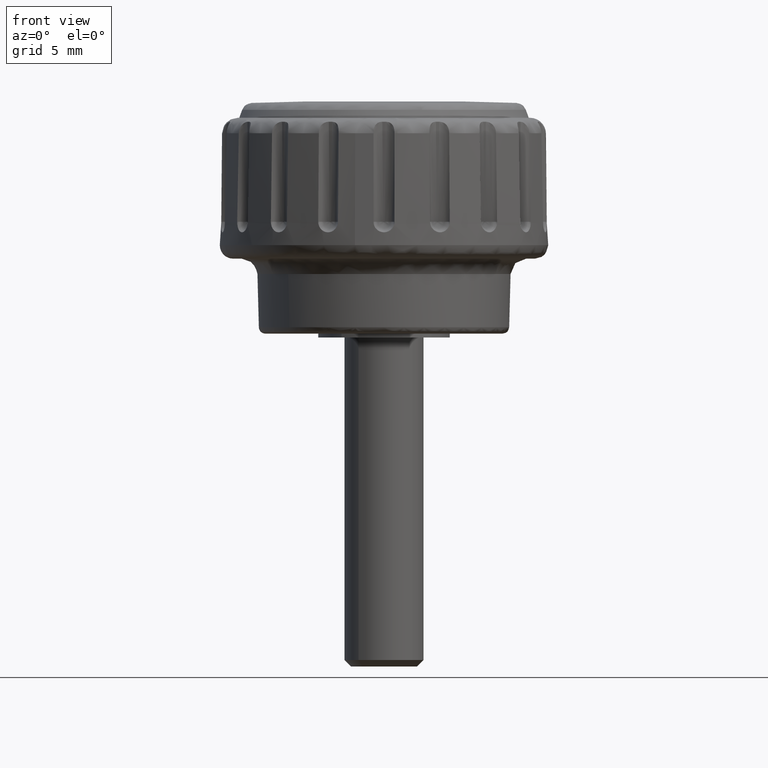
[diagram: clean part render]
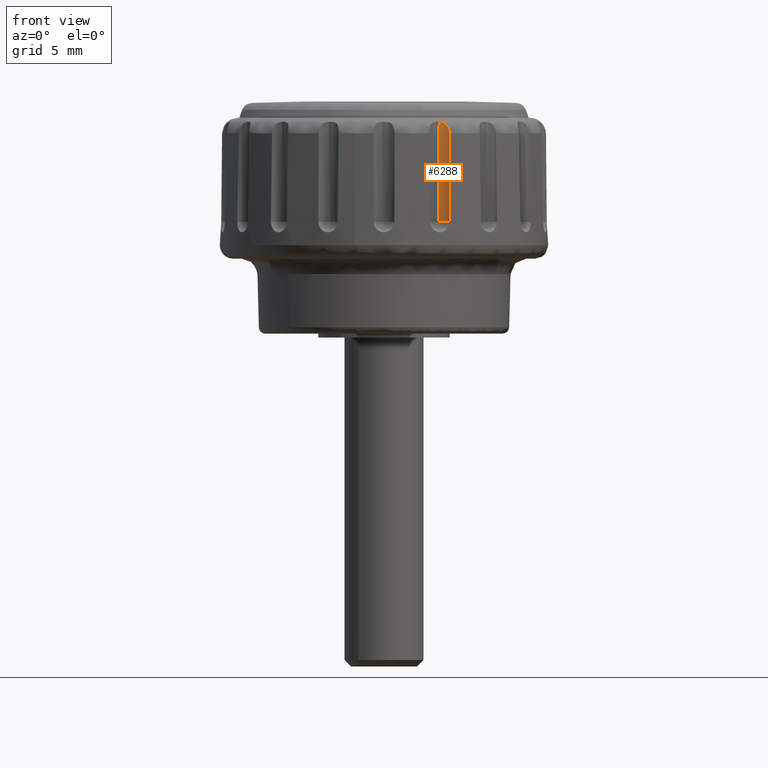
[diagram: same view with one face highlighted and labeled with its STEP entity id]
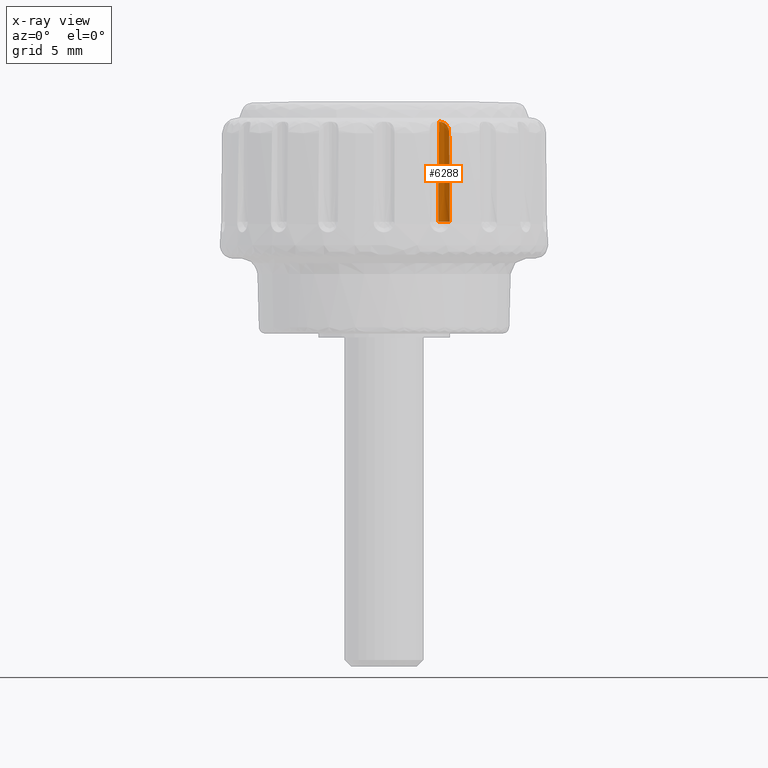
[diagram: x-ray of the same camera — body ghosted, the highlighted face saturated]
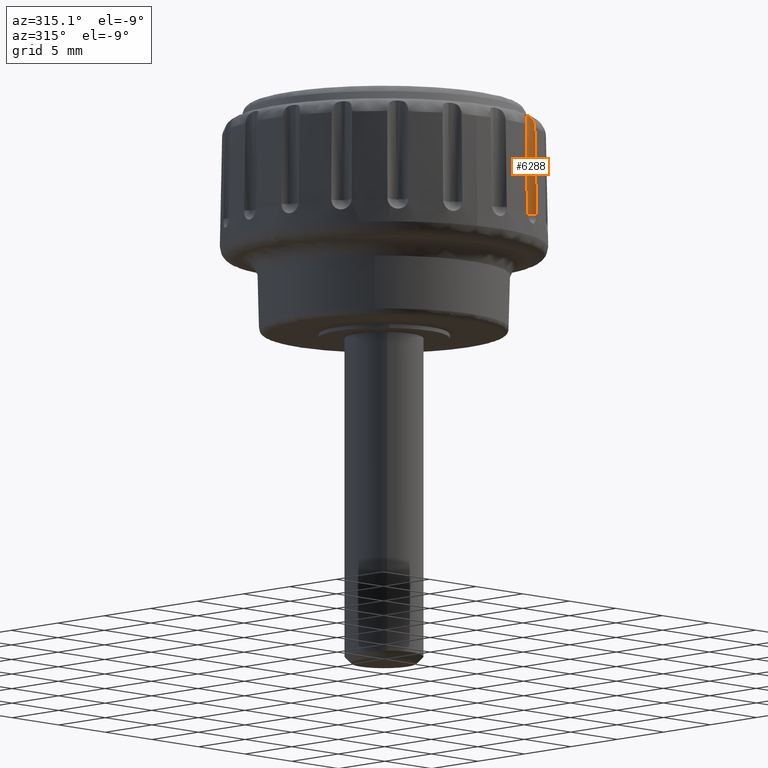
[diagram: same view with one face highlighted and labeled with its STEP entity id]
A machine part, front view. The second image highlights one B-rep face of the part: STEP entity #6288.
The next image is the same camera in x-ray: the body ghosted, the highlighted face saturated — about 0% of this face is hidden behind the body in this view.
A second angle (auxiliary view) of the same face is appended — the face is thin or edge-on in the first view.
In plain terms, the highlighted face is a freeform B-spline surface patch.
Its self-contained STEP definition (entity closure, byte-faithful):
#2453=CARTESIAN_POINT('',(4.952143385953621,-11.266861534483141,15.524289876473100));
#2454=VERTEX_POINT('',#2453);
#2462=CARTESIAN_POINT('',(4.998808680543161,-11.395073377640060,8.800002999999810));
#2463=VERTEX_POINT('',#2462);
#2464=CARTESIAN_POINT('',(4.998808680543161,-11.395073377640060,8.800002999999810));
#2465=CARTESIAN_POINT('',(4.952143385953621,-11.266861534483141,15.524289876473100));
#2466=QUASI_UNIFORM_CURVE('',1,(#2464,#2465),.UNSPECIFIED.,.F.,.U.);
#2467=EDGE_CURVE('',#2463,#2454,#2466,.T.);
#5176=CARTESIAN_POINT('',(4.191839101503629,-11.138007640149519,16.400364117337599));
#5177=VERTEX_POINT('',#5176);
#5183=CARTESIAN_POINT('',(4.191839101503625,-11.138007640149540,16.400364117337599));
#5184=CARTESIAN_POINT('',(4.244297295834451,-11.118914418869799,16.399828393956870));
#5185=CARTESIAN_POINT('',(4.297409528840149,-11.105736599679849,16.393970564865040));
#5186=CARTESIAN_POINT('',(4.377857452597395,-11.094178478590370,16.376831468272361));
#5187=CARTESIAN_POINT('',(4.404875380051452,-11.091727388285330,16.369646716176131));
#5188=CARTESIAN_POINT('',(4.457382803054588,-11.089569262834640,16.352686474205839));
#5189=CARTESIAN_POINT('',(4.483089355149648,-11.089822017647430,16.342874288419178));
#5190=CARTESIAN_POINT('',(4.533352566532616,-11.092679408322740,16.320433887607290));
#5191=CARTESIAN_POINT('',(4.558060856306240,-11.095310869456570,16.307711572584399));
#5192=CARTESIAN_POINT('',(4.605473456176624,-11.102532902075181,16.279624840757268));
#5193=CARTESIAN_POINT('',(4.628031922168858,-11.107081681472639,16.264373108260848));
#5194=CARTESIAN_POINT('',(4.670954139925654,-11.117577925553610,16.231436317713790));
#5195=CARTESIAN_POINT('',(4.691317122265712,-11.123526751162670,16.213750677826742));
#5196=CARTESIAN_POINT('',(4.729896265729883,-11.136404320799620,16.175878208810229));
#5197=CARTESIAN_POINT('',(4.747969057010364,-11.143290949622671,16.155809118573139));
#5198=CARTESIAN_POINT('',(4.781344309928802,-11.157310561425620,16.114104184054039));
#5199=CARTESIAN_POINT('',(4.796741756275555,-11.164475802941100,16.092376694210561));
#5200=CARTESIAN_POINT('',(4.825184132366263,-11.178755371652191,16.047217969913600));
#5201=CARTESIAN_POINT('',(4.838281232128213,-11.185901726664589,16.023675052252500));
#5202=CARTESIAN_POINT('',(4.873890916118610,-11.206558653617700,15.951357352452201));
#5203=CARTESIAN_POINT('',(4.892655416436169,-11.219172539747520,15.901287818296000));
#5204=CARTESIAN_POINT('',(4.914931360991591,-11.235231384989071,15.823665248984559));
#5205=CARTESIAN_POINT('',(4.921366021064048,-11.240112503894700,15.797368541759740));
#5206=CARTESIAN_POINT('',(4.932393264723132,-11.248784780182159,15.743943129673641));
#5207=CARTESIAN_POINT('',(4.936992523872162,-11.252582719098321,15.716732451575210));
#5208=CARTESIAN_POINT('',(4.948008865039437,-11.262035763727750,15.634901959451790));
#5209=CARTESIAN_POINT('',(4.951757837235429,-11.265802248085979,15.579844652783651));
#5210=CARTESIAN_POINT('',(4.952143385953621,-11.266861534483141,15.524289876473100));
#5211=B_SPLINE_CURVE_WITH_KNOTS('',3,(#5183,#5184,#5185,#5186,#5187,#5188,#5189,#5190,#5191,#5192,#5193,#5194,#5195,#5196,#5197,#5198,#5199,#5200,#5201,#5202,#5203,#5204,#5205,#5206,#5207,#5208,#5209,#5210),.UNSPECIFIED.,.F.,.U.,(4,2,2,2,2,2,2,2,2,2,2,2,2,4),(0.0,0.124999999999999,0.187499999999998,0.249999999999998,0.312499999999998,0.374999999999998,0.437499999999998,0.499999999999998,0.562499999999998,0.624999999999998,0.749999999999999,0.812499999999999,0.874999999999999,1.0),.UNSPECIFIED.);
#5212=EDGE_CURVE('',#5177,#2454,#5211,.T.);
#6228=CARTESIAN_POINT('',(4.118468963007865,-11.164712186645980,8.805733710091390));
#6229=VERTEX_POINT('',#6228);
#6230=CARTESIAN_POINT('',(4.998808680543161,-11.395073377640060,8.800002999999810));
#6231=CARTESIAN_POINT('',(4.946258741444841,-11.333870669881501,8.800220817834351));
#6232=CARTESIAN_POINT('',(4.826309161046332,-11.230911147329129,8.800814219696036));
#6233=CARTESIAN_POINT('',(4.593478351169752,-11.127806154701110,8.802219411247643));
#6234=CARTESIAN_POINT('',(4.348696155968630,-11.104437625188190,8.803919401607972));
#6235=CARTESIAN_POINT('',(4.184784960803818,-11.140565093015120,8.805193337117737));
#6236=CARTESIAN_POINT('',(4.118468963007865,-11.164712186645980,8.805733710091390));
#6237=B_SPLINE_CURVE_WITH_KNOTS('',3,(#6230,#6231,#6232,#6233,#6234,#6235,#6236),.UNSPECIFIED.,.F.,.U.,(4,1,1,1,4),(0.000000042194033,0.241997421516979,0.468879962056801,0.756242293447363,0.967989010174169),.UNSPECIFIED.);
#6238=EDGE_CURVE('',#2463,#6229,#6237,.T.);
#6256=CARTESIAN_POINT('',(4.945807136802128,-11.249452833016591,16.437294547870110));
#6257=CARTESIAN_POINT('',(4.963474145342572,-11.297992540650259,13.891622866934020));
#6258=CARTESIAN_POINT('',(4.981141530393529,-11.346533281531981,11.345828856094469));
#6259=CARTESIAN_POINT('',(4.998808680542751,-11.395073377640250,8.800002999999812));
#6260=CARTESIAN_POINT('',(4.599314344158219,-10.989698780622859,16.440431891934590));
#6261=CARTESIAN_POINT('',(4.605090596187617,-10.987596396818347,13.894150822214158));
#6262=CARTESIAN_POINT('',(4.618250699984499,-10.982806510756950,11.347799259349799));
#6263=CARTESIAN_POINT('',(4.638275253343259,-10.975518169379557,8.801498297712275));
#6264=CARTESIAN_POINT('',(4.192408624282200,-11.137800350810391,16.446170015067441));
#6265=CARTESIAN_POINT('',(4.160696256191068,-11.149342708853730,13.899451326088220));
#6266=CARTESIAN_POINT('',(4.136791506216579,-11.158043326301909,11.352607337270840));
#6267=CARTESIAN_POINT('',(4.118467037917470,-11.164712887321580,8.805733708062052));
#6275=(BOUNDED_SURFACE()B_SPLINE_SURFACE(3,2,((#6256,#6260,#6264),(#6257,#6261,#6265),(#6258,#6262,#6266),(#6259,#6263,#6267)),.UNSPECIFIED.,.F.,.F.,.U.)B_SPLINE_SURFACE_WITH_KNOTS((4,4),(3,3),(0.0,7.721365348331238),(0.0,1.0),.UNSPECIFIED.)GEOMETRIC_REPRESENTATION_ITEM()RATIONAL_B_SPLINE_SURFACE(((1.0,0.879418671319649,1.0),(1.0,0.861062463799062,1.0),(1.0,0.842135236060378,1.0),(1.0,0.822510399759734,1.0)))REPRESENTATION_ITEM('')SURFACE());
#6276=ORIENTED_EDGE('',*,*,#5212,.F.);
#6277=CARTESIAN_POINT('',(4.118468963007865,-11.164712186645980,8.805733710091390));
#6278=CARTESIAN_POINT('',(4.136682950090862,-11.158082837500460,11.337340997536330));
#6279=CARTESIAN_POINT('',(4.160412771217562,-11.149445888945870,13.868903114757140));
#6280=CARTESIAN_POINT('',(4.191839101503629,-11.138007640149519,16.400364117337599));
#6281=QUASI_UNIFORM_CURVE('',3,(#6277,#6278,#6279,#6280),.UNSPECIFIED.,.F.,.U.);
#6282=EDGE_CURVE('',#6229,#5177,#6281,.T.);
#6283=ORIENTED_EDGE('',*,*,#6282,.F.);
#6284=ORIENTED_EDGE('',*,*,#6238,.F.);
#6285=ORIENTED_EDGE('',*,*,#2467,.T.);
#6286=EDGE_LOOP('',(#6276,#6283,#6284,#6285));
#6287=FACE_OUTER_BOUND('',#6286,.T.);
#6288=ADVANCED_FACE('',(#6287),#6275,.F.);